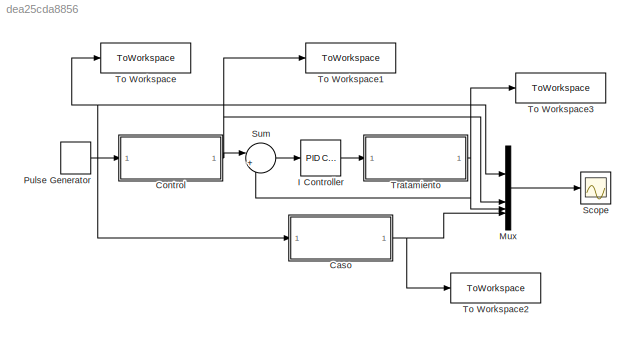
MODEL slx_dea25cda8856
KIND model
CONFIG AbsTol = auto
CONFIG EnableMultiTasking = off
CONFIG FixedStep = auto
CONFIG MaxStep = 1e-3
CONFIG MinStep = auto
CONFIG RelTol = 1e-3
CONFIG SampleTimeConstraint = Unconstrained
CONFIG SolverName = VariableStepAuto
CONFIG StartTime = 0.0
CONFIG StopTime = 10
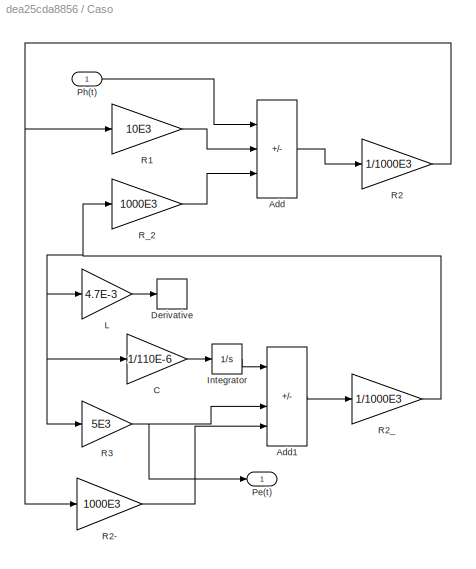
BLOCK [SubSystem] Caso
BLOCK [Sum] Caso/Add
  IconShape = rectangular
  Inputs = +-+
BLOCK [Sum] Caso/Add1
  IconShape = rectangular
  Inputs = ---+
BLOCK [Gain] Caso/C
  Gain = 1/110E-6
BLOCK [Derivative] Caso/Derivative
BLOCK [Integrator] Caso/Integrator
BLOCK [Gain] Caso/L
  Gain = 4.7E-3
BLOCK [Outport] Caso/Pe(t)
BLOCK [Inport] Caso/Ph(t)
BLOCK [Gain] Caso/R1
  Gain = 10E3
BLOCK [Gain] Caso/R2
  Gain = 1/1000E3
BLOCK [Gain] Caso/R2-
  Gain = 1000E3
BLOCK [Gain] Caso/R2_
  Gain = 1/1000E3
BLOCK [Gain] Caso/R3
  Gain = 5E3
BLOCK [Gain] Caso/R_2
  Gain = 1000E3
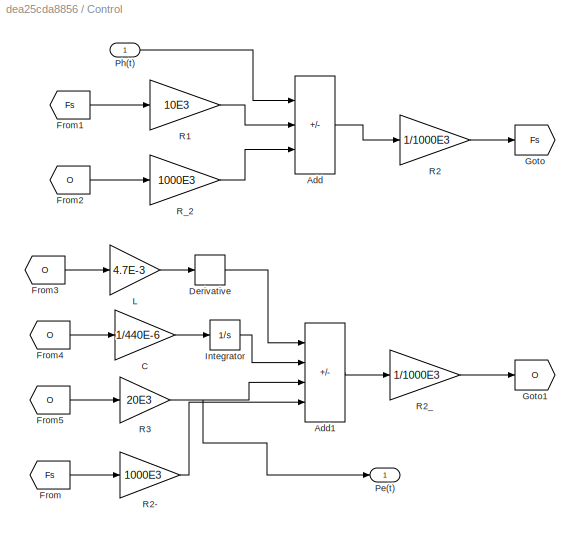
BLOCK [SubSystem] Control
BLOCK [Sum] Control/Add
  IconShape = rectangular
  Inputs = +-+
BLOCK [Sum] Control/Add1
  IconShape = rectangular
  Inputs = ---+
BLOCK [Gain] Control/C
  Gain = 1/440E-6
BLOCK [Derivative] Control/Derivative
BLOCK [From] Control/From
  GotoTag = Fs
BLOCK [From] Control/From1
  GotoTag = Fs
BLOCK [From] Control/From2
  GotoTag = O
BLOCK [From] Control/From3
  GotoTag = O
BLOCK [From] Control/From4
  GotoTag = O
BLOCK [From] Control/From5
  GotoTag = O
BLOCK [Goto] Control/Goto
  GotoTag = Fs
BLOCK [Goto] Control/Goto1
  GotoTag = O
BLOCK [Integrator] Control/Integrator
BLOCK [Gain] Control/L
  Gain = 4.7E-3
BLOCK [Outport] Control/Pe(t)
BLOCK [Inport] Control/Ph(t)
BLOCK [Gain] Control/R1
  Gain = 10E3
BLOCK [Gain] Control/R2
  Gain = 1/1000E3
BLOCK [Gain] Control/R2-
  Gain = 1000E3
BLOCK [Gain] Control/R2_
  Gain = 1/1000E3
BLOCK [Gain] Control/R3
  Gain = 20E3
BLOCK [Gain] Control/R_2
  Gain = 1000E3
BLOCK [Reference] I Controller  REF=slpidlib/PID Controller
  LibrarySourceBlock = simulink/Continuous/PID Controller
  SourceBlock = slpidlib/PID Controller
  SourceType = PID 1dof
BLOCK [Mux] Mux
  DisplayOption = bar
BLOCK [DiscretePulseGenerator] Pulse Generator
  Period = 10
  PhaseDelay = 1
  PulseType = Time based
  PulseWidth = 10
BLOCK [Scope] Scope
  Floating = off
  NumInputPorts = 1
  ScopeSpecificationString = Simulink.scopes.TimeScopeBlockCfg('CurrentConfiguration', extmgr.ConfigurationSet(extmgr.Configuration('Core','General UI',true,'FigureColor',[1 1 1]),extmgr.Configuration('Core','Source UI',true),extmgr.Configuration('Sources','WiredSimulink',true),extmgr.Configuration('Visuals','Time Domain',true,'SerializedDisplays',{struct('MinYLimReal','-0.29569','MaxYLimReal','1.14397','YLabelReal','','MinYL...<+1901ch>
BLOCK [Sum] Sum
  Inputs = |+-
BLOCK [ToWorkspace] To Workspace
  FixptAsFi = on
  MaxDataPoints = inf
  SampleTime = -1
  VariableName = Ph
BLOCK [ToWorkspace] To Workspace1
  FixptAsFi = on
  MaxDataPoints = inf
  SampleTime = -1
  VariableName = Pex
BLOCK [ToWorkspace] To Workspace2
  FixptAsFi = on
  MaxDataPoints = inf
  SampleTime = -1
  VariableName = Pey
BLOCK [ToWorkspace] To Workspace3
  FixptAsFi = on
  MaxDataPoints = inf
  SampleTime = -1
  VariableName = Pez
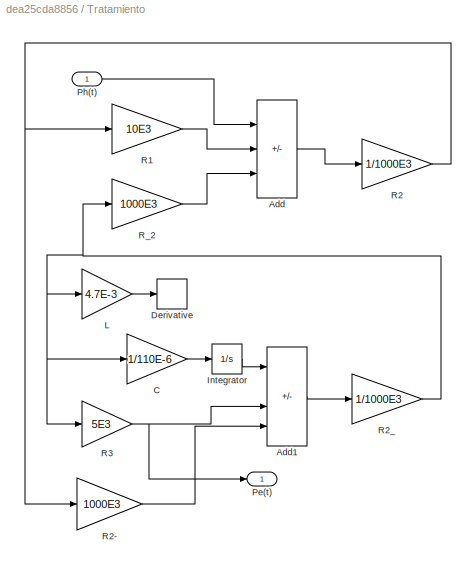
BLOCK [SubSystem] Tratamiento
BLOCK [Sum] Tratamiento/Add
  IconShape = rectangular
  Inputs = +-+
BLOCK [Sum] Tratamiento/Add1
  IconShape = rectangular
  Inputs = ---+
BLOCK [Gain] Tratamiento/C
  Gain = 1/110E-6
BLOCK [Derivative] Tratamiento/Derivative
BLOCK [Integrator] Tratamiento/Integrator
BLOCK [Gain] Tratamiento/L
  Gain = 4.7E-3
BLOCK [Outport] Tratamiento/Pe(t)
BLOCK [Inport] Tratamiento/Ph(t)
BLOCK [Gain] Tratamiento/R1
  Gain = 10E3
BLOCK [Gain] Tratamiento/R2
  Gain = 1/1000E3
BLOCK [Gain] Tratamiento/R2-
  Gain = 1000E3
BLOCK [Gain] Tratamiento/R2_
  Gain = 1/1000E3
BLOCK [Gain] Tratamiento/R3
  Gain = 5E3
BLOCK [Gain] Tratamiento/R_2
  Gain = 1000E3
LINE Caso/Add1:1 -> Caso/R2_:1
LINE Caso/Add:1 -> Caso/R2:1
LINE Caso/C:1 -> Caso/Integrator:1
LINE Caso/Integrator:1 -> Caso/Add1:1
LINE Caso/L:1 -> Caso/Derivative:1
LINE Caso/Ph(t):1 -> Caso/Add:1
LINE Caso/R1:1 -> Caso/Add:2
LINE Caso/R2-:1 -> Caso/Add1:4
NET Caso/R2:1 -> Caso/R1:1, Caso/R2-:1
NET Caso/R2_:1 -> Caso/C:1, Caso/L:1, Caso/R3:1, Caso/R_2:1
NET Caso/R3:1 -> Caso/Add1:3, Caso/Pe(t):1
LINE Caso/R_2:1 -> Caso/Add:3
NET Caso:1 -> Mux:4, To Workspace2:1
LINE Control/Add1:1 -> Control/R2_:1
LINE Control/Add:1 -> Control/R2:1
LINE Control/C:1 -> Control/Integrator:1
LINE Control/Derivative:1 -> Control/Add1:1
LINE Control/From1:1 -> Control/R1:1
LINE Control/From2:1 -> Control/R_2:1
LINE Control/From3:1 -> Control/L:1
LINE Control/From4:1 -> Control/C:1
LINE Control/From5:1 -> Control/R3:1
LINE Control/From:1 -> Control/R2-:1
LINE Control/Integrator:1 -> Control/Add1:2
LINE Control/L:1 -> Control/Derivative:1
LINE Control/Ph(t):1 -> Control/Add:1
LINE Control/R1:1 -> Control/Add:2
LINE Control/R2-:1 -> Control/Add1:4
LINE Control/R2:1 -> Control/Goto:1
LINE Control/R2_:1 -> Control/Goto1:1
NET Control/R3:1 -> Control/Add1:3, Control/Pe(t):1
LINE Control/R_2:1 -> Control/Add:3
NET Control:1 -> Mux:2, Sum:1, To Workspace1:1
LINE I Controller:1 -> Tratamiento:1
LINE Mux:1 -> Scope:1
NET Pulse Generator:1 -> Caso:1, Control:1, Mux:1, To Workspace:1
LINE Sum:1 -> I Controller:1
LINE Tratamiento/Add1:1 -> Tratamiento/R2_:1
LINE Tratamiento/Add:1 -> Tratamiento/R2:1
LINE Tratamiento/C:1 -> Tratamiento/Integrator:1
LINE Tratamiento/Integrator:1 -> Tratamiento/Add1:1
LINE Tratamiento/L:1 -> Tratamiento/Derivative:1
LINE Tratamiento/Ph(t):1 -> Tratamiento/Add:1
LINE Tratamiento/R1:1 -> Tratamiento/Add:2
LINE Tratamiento/R2-:1 -> Tratamiento/Add1:4
NET Tratamiento/R2:1 -> Tratamiento/R1:1, Tratamiento/R2-:1
NET Tratamiento/R2_:1 -> Tratamiento/C:1, Tratamiento/L:1, Tratamiento/R3:1, Tratamiento/R_2:1
NET Tratamiento/R3:1 -> Tratamiento/Add1:3, Tratamiento/Pe(t):1
LINE Tratamiento/R_2:1 -> Tratamiento/Add:3
NET Tratamiento:1 -> Mux:3, Sum:2, To Workspace3:1
note: NET lines group one-source signal fan-out (src -> all destinations, sorted); 1:1 wires keep LINE
